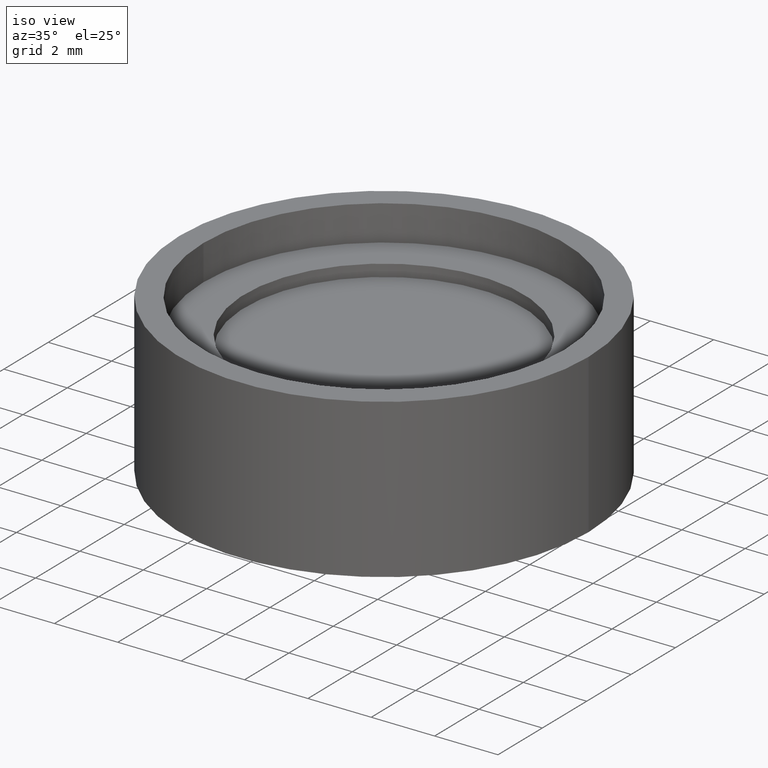
[diagram: clean part render]
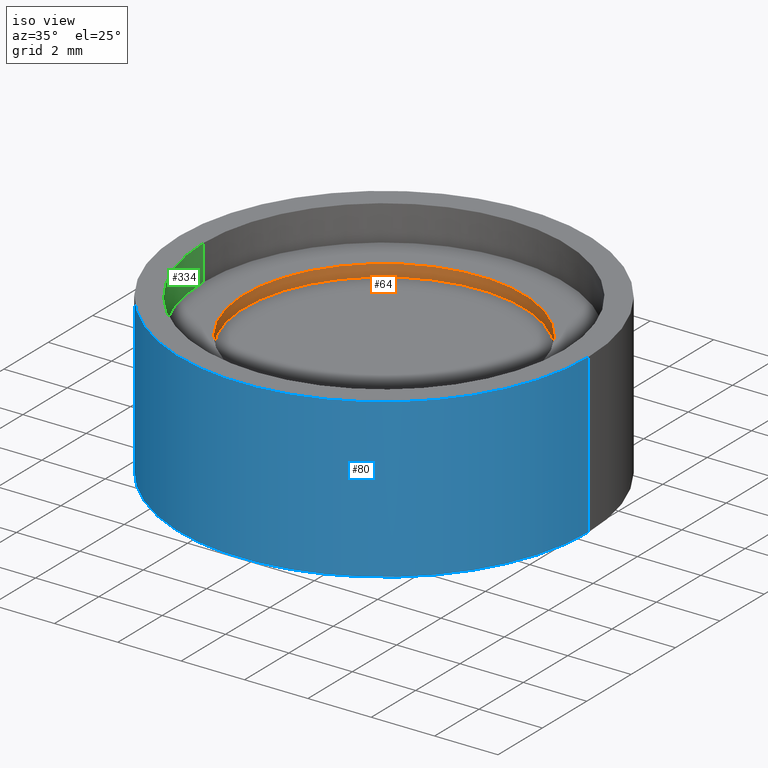
[diagram: same view with three faces highlighted in distinct colors, each labeled with its STEP entity id]
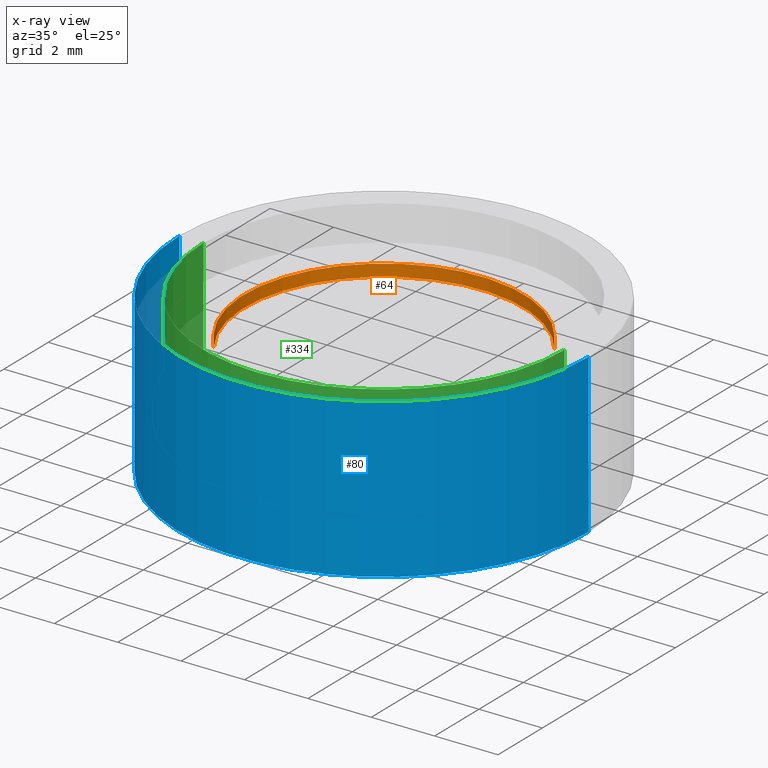
[diagram: x-ray of the same camera — body ghosted, the three highlighted faces saturated]
A machine part, iso view with three faces highlighted in distinct colors.
The next image is the same camera in x-ray (body ghosted, the three faces saturated) — at least one of them is partly hidden behind the body in this view.
Their STEP definitions:

[orange] entity #64 — the highlighted cylindrical surface (partial cylindrical patch) has radius 4.4069 mm, axis along (0, 0, 1).
#1 = VERTEX_POINT ( 'NONE', #535 ) ;
#52 = DIRECTION ( 'NONE',  ( 0.0000000000000000000, 0.0000000000000000000, 1.000000000000000000 ) ) ;
#64 = ADVANCED_FACE ( 'NONE', ( #527 ), #286, .F. ) ;
#66 = VECTOR ( 'NONE', #630, 1000.000000000000000 ) ;
#76 = DIRECTION ( 'NONE',  ( 0.8284142084669521289, 0.5601159694296110603, 0.0000000000000000000 ) ) ;
#77 = DIRECTION ( 'NONE',  ( 0.0000000000000000000, 0.0000000000000000000, 1.000000000000000000 ) ) ;
#135 = DIRECTION ( 'NONE',  ( 0.0000000000000000000, 0.0000000000000000000, 1.000000000000000000 ) ) ;
#151 = EDGE_CURVE ( 'NONE', #529, #181, #168, .T. ) ;
#152 = ORIENTED_EDGE ( 'NONE', *, *, #169, .T. ) ;
#168 = CIRCLE ( 'NONE', #288, 4.406899999999999373 ) ;
#169 = EDGE_CURVE ( 'NONE', #1, #529, #182, .T. ) ;
#175 = ORIENTED_EDGE ( 'NONE', *, *, #271, .F. ) ;
#181 = VERTEX_POINT ( 'NONE', #185 ) ;
#182 = LINE ( 'NONE', #577, #66 ) ;
#185 = CARTESIAN_POINT ( 'NONE',  ( -3.650738575293011490, -2.468375065679352165, 2.762000000000000011 ) ) ;
#219 = CARTESIAN_POINT ( 'NONE',  ( 0.0000000000000000000, 0.0000000000000000000, 2.381000000000000227 ) ) ;
#252 = VERTEX_POINT ( 'NONE', #338 ) ;
#271 = EDGE_CURVE ( 'NONE', #1, #252, #564, .T. ) ;
#283 = CARTESIAN_POINT ( 'NONE',  ( 0.0000000000000000000, 0.0000000000000000000, 2.381000000000000227 ) ) ;
#286 = CYLINDRICAL_SURFACE ( 'NONE', #348, 4.406899999999999373 ) ;
#288 = AXIS2_PLACEMENT_3D ( 'NONE', #431, #135, #76 ) ;
#292 = ORIENTED_EDGE ( 'NONE', *, *, #474, .F. ) ;
#336 = DIRECTION ( 'NONE',  ( 0.8284142084669521289, 0.5601159694296110603, 0.0000000000000000000 ) ) ;
#338 = CARTESIAN_POINT ( 'NONE',  ( -3.650738575293011490, -2.468375065679352165, 2.381000000000000227 ) ) ;
#348 = AXIS2_PLACEMENT_3D ( 'NONE', #283, #77, #336 ) ;
#391 = CARTESIAN_POINT ( 'NONE',  ( 3.650738575293011046, 2.468375065679352609, 2.762000000000000011 ) ) ;
#414 = DIRECTION ( 'NONE',  ( 0.8284142084669521289, 0.5601159694296110603, 0.0000000000000000000 ) ) ;
#426 = EDGE_LOOP ( 'NONE', ( #292, #175, #152, #453 ) ) ;
#431 = CARTESIAN_POINT ( 'NONE',  ( 0.0000000000000000000, 0.0000000000000000000, 2.762000000000000011 ) ) ;
#453 = ORIENTED_EDGE ( 'NONE', *, *, #151, .T. ) ;
#474 = EDGE_CURVE ( 'NONE', #252, #181, #504, .T. ) ;
#504 = LINE ( 'NONE', #510, #533 ) ;
#510 = CARTESIAN_POINT ( 'NONE',  ( -3.650738575293011490, -2.468375065679352165, 2.381000000000000227 ) ) ;
#518 = DIRECTION ( 'NONE',  ( 0.0000000000000000000, 0.0000000000000000000, 1.000000000000000000 ) ) ;
#527 = FACE_OUTER_BOUND ( 'NONE', #426, .T. ) ;
#529 = VERTEX_POINT ( 'NONE', #391 ) ;
#533 = VECTOR ( 'NONE', #518, 1000.000000000000000 ) ;
#535 = CARTESIAN_POINT ( 'NONE',  ( 3.650738575293011046, 2.468375065679352609, 2.381000000000000227 ) ) ;
#564 = CIRCLE ( 'NONE', #592, 4.406899999999999373 ) ;
#577 = CARTESIAN_POINT ( 'NONE',  ( 3.650738575293011046, 2.468375065679352609, 2.381000000000000227 ) ) ;
#592 = AXIS2_PLACEMENT_3D ( 'NONE', #219, #52, #414 ) ;
#630 = DIRECTION ( 'NONE',  ( 0.0000000000000000000, 0.0000000000000000000, 1.000000000000000000 ) ) ;

[blue] entity #80 — the highlighted cylindrical surface (partial cylindrical patch) has radius 6.458 mm, axis along (-0, -0, -1).
#19 = DIRECTION ( 'NONE',  ( -0.0000000000000000000, -0.0000000000000000000, -1.000000000000000000 ) ) ;
#35 = CYLINDRICAL_SURFACE ( 'NONE', #540, 6.458015859815825266 ) ;
#80 = ADVANCED_FACE ( 'NONE', ( #437 ), #35, .T. ) ;
#119 = EDGE_CURVE ( 'NONE', #293, #440, #479, .T. ) ;
#129 = ORIENTED_EDGE ( 'NONE', *, *, #179, .F. ) ;
#130 = DIRECTION ( 'NONE',  ( -1.000000000000000000, 0.0000000000000000000, 0.0000000000000000000 ) ) ;
#146 = ORIENTED_EDGE ( 'NONE', *, *, #196, .F. ) ;
#148 = EDGE_LOOP ( 'NONE', ( #129, #229, #333, #146 ) ) ;
#178 = DIRECTION ( 'NONE',  ( -0.0000000000000000000, -0.0000000000000000000, -1.000000000000000000 ) ) ;
#179 = EDGE_CURVE ( 'NONE', #293, #450, #422, .T. ) ;
#188 = CARTESIAN_POINT ( 'NONE',  ( -6.458015859815825266, 0.0000000000000000000, -1.695065087290339889 ) ) ;
#191 = DIRECTION ( 'NONE',  ( -1.000000000000000000, 0.0000000000000000000, 0.0000000000000000000 ) ) ;
#196 = EDGE_CURVE ( 'NONE', #450, #322, #571, .T. ) ;
#212 = EDGE_CURVE ( 'NONE', #440, #322, #640, .T. ) ;
#229 = ORIENTED_EDGE ( 'NONE', *, *, #119, .T. ) ;
#235 = CARTESIAN_POINT ( 'NONE',  ( 0.0000000000000000000, 0.0000000000000000000, 3.881000000000001560 ) ) ;
#239 = DIRECTION ( 'NONE',  ( -1.000000000000000000, 0.0000000000000000000, 0.0000000000000000000 ) ) ;
#242 = CARTESIAN_POINT ( 'NONE',  ( 0.0000000000000000000, 0.0000000000000000000, -1.695065087290339889 ) ) ;
#256 = CARTESIAN_POINT ( 'NONE',  ( 6.458015859815827042, 7.908788451566294723E-16, -1.118999999999997996 ) ) ;
#293 = VERTEX_POINT ( 'NONE', #465 ) ;
#322 = VERTEX_POINT ( 'NONE', #364 ) ;
#332 = CARTESIAN_POINT ( 'NONE',  ( 0.0000000000000000000, 0.0000000000000000000, -1.118999999999997996 ) ) ;
#333 = ORIENTED_EDGE ( 'NONE', *, *, #212, .T. ) ;
#364 = CARTESIAN_POINT ( 'NONE',  ( -6.458015859815826154, 0.0000000000000000000, -1.118999999999997996 ) ) ;
#383 = DIRECTION ( 'NONE',  ( -0.0000000000000000000, -0.0000000000000000000, -1.000000000000000000 ) ) ;
#422 = LINE ( 'NONE', #638, #522 ) ;
#424 = AXIS2_PLACEMENT_3D ( 'NONE', #332, #534, #239 ) ;
#437 = FACE_OUTER_BOUND ( 'NONE', #148, .T. ) ;
#440 = VERTEX_POINT ( 'NONE', #499 ) ;
#450 = VERTEX_POINT ( 'NONE', #256 ) ;
#454 = AXIS2_PLACEMENT_3D ( 'NONE', #235, #178, #130 ) ;
#465 = CARTESIAN_POINT ( 'NONE',  ( 6.458015859815825266, 7.908788451566292751E-16, 3.881000000000001560 ) ) ;
#467 = VECTOR ( 'NONE', #383, 1000.000000000000000 ) ;
#479 = CIRCLE ( 'NONE', #454, 6.458015859815825266 ) ;
#499 = CARTESIAN_POINT ( 'NONE',  ( -6.458015859815825266, 0.0000000000000000000, 3.881000000000001560 ) ) ;
#522 = VECTOR ( 'NONE', #19, 1000.000000000000000 ) ;
#534 = DIRECTION ( 'NONE',  ( -0.0000000000000000000, -0.0000000000000000000, -1.000000000000000000 ) ) ;
#540 = AXIS2_PLACEMENT_3D ( 'NONE', #242, #643, #191 ) ;
#571 = CIRCLE ( 'NONE', #424, 6.458015859815826154 ) ;
#638 = CARTESIAN_POINT ( 'NONE',  ( 6.458015859815825266, 7.908788451566292751E-16, -1.695065087290339889 ) ) ;
#640 = LINE ( 'NONE', #188, #467 ) ;
#643 = DIRECTION ( 'NONE',  ( -0.0000000000000000000, -0.0000000000000000000, -1.000000000000000000 ) ) ;

[green] entity #334 — the highlighted cylindrical surface (partial cylindrical patch) has radius 5.7 mm, axis along (-0, -0, -1).
#30 = DIRECTION ( 'NONE',  ( -1.000000000000000000, 0.0000000000000000000, 0.0000000000000000000 ) ) ;
#37 = ORIENTED_EDGE ( 'NONE', *, *, #173, .F. ) ;
#38 = VERTEX_POINT ( 'NONE', #490 ) ;
#41 = AXIS2_PLACEMENT_3D ( 'NONE', #142, #186, #539 ) ;
#42 = VECTOR ( 'NONE', #215, 1000.000000000000000 ) ;
#46 = LINE ( 'NONE', #165, #444 ) ;
#57 = CYLINDRICAL_SURFACE ( 'NONE', #365, 5.700000000000000178 ) ;
#92 = EDGE_CURVE ( 'NONE', #38, #371, #627, .T. ) ;
#120 = CARTESIAN_POINT ( 'NONE',  ( -5.700000000000000178, 0.0000000000000000000, 0.8809999999999997833 ) ) ;
#142 = CARTESIAN_POINT ( 'NONE',  ( 0.0000000000000000000, 0.0000000000000000000, 0.8809999999999997833 ) ) ;
#165 = CARTESIAN_POINT ( 'NONE',  ( -5.700000000000000178, 0.0000000000000000000, -1.695065087290339889 ) ) ;
#173 = EDGE_CURVE ( 'NONE', #387, #345, #498, .T. ) ;
#186 = DIRECTION ( 'NONE',  ( -0.0000000000000000000, -0.0000000000000000000, -1.000000000000000000 ) ) ;
#215 = DIRECTION ( 'NONE',  ( -0.0000000000000000000, -0.0000000000000000000, -1.000000000000000000 ) ) ;
#221 = AXIS2_PLACEMENT_3D ( 'NONE', #486, #584, #30 ) ;
#253 = CARTESIAN_POINT ( 'NONE',  ( 0.0000000000000000000, 0.0000000000000000000, -1.695065087290339889 ) ) ;
#263 = LINE ( 'NONE', #461, #42 ) ;
#265 = DIRECTION ( 'NONE',  ( -0.0000000000000000000, -0.0000000000000000000, -1.000000000000000000 ) ) ;
#306 = EDGE_LOOP ( 'NONE', ( #37, #358, #597, #434 ) ) ;
#334 = ADVANCED_FACE ( 'NONE', ( #516 ), #57, .F. ) ;
#345 = VERTEX_POINT ( 'NONE', #368 ) ;
#358 = ORIENTED_EDGE ( 'NONE', *, *, #488, .T. ) ;
#365 = AXIS2_PLACEMENT_3D ( 'NONE', #253, #265, #511 ) ;
#368 = CARTESIAN_POINT ( 'NONE',  ( -5.699999999999999289, 0.0000000000000000000, 3.881000000000001560 ) ) ;
#371 = VERTEX_POINT ( 'NONE', #120 ) ;
#387 = VERTEX_POINT ( 'NONE', #451 ) ;
#406 = EDGE_CURVE ( 'NONE', #345, #371, #46, .T. ) ;
#434 = ORIENTED_EDGE ( 'NONE', *, *, #406, .F. ) ;
#444 = VECTOR ( 'NONE', #464, 1000.000000000000000 ) ;
#451 = CARTESIAN_POINT ( 'NONE',  ( 5.699999999999999289, 6.980486755139912122E-16, 3.881000000000001560 ) ) ;
#461 = CARTESIAN_POINT ( 'NONE',  ( 5.700000000000000178, 6.980486755139913108E-16, -1.695065087290339889 ) ) ;
#464 = DIRECTION ( 'NONE',  ( -0.0000000000000000000, -0.0000000000000000000, -1.000000000000000000 ) ) ;
#486 = CARTESIAN_POINT ( 'NONE',  ( 0.0000000000000000000, 0.0000000000000000000, 3.881000000000001560 ) ) ;
#488 = EDGE_CURVE ( 'NONE', #387, #38, #263, .T. ) ;
#490 = CARTESIAN_POINT ( 'NONE',  ( 5.700000000000000178, 6.980486755139913108E-16, 0.8809999999999997833 ) ) ;
#498 = CIRCLE ( 'NONE', #221, 5.699999999999999289 ) ;
#511 = DIRECTION ( 'NONE',  ( -1.000000000000000000, 0.0000000000000000000, 0.0000000000000000000 ) ) ;
#516 = FACE_OUTER_BOUND ( 'NONE', #306, .T. ) ;
#539 = DIRECTION ( 'NONE',  ( -1.000000000000000000, 0.0000000000000000000, 0.0000000000000000000 ) ) ;
#584 = DIRECTION ( 'NONE',  ( -0.0000000000000000000, -0.0000000000000000000, -1.000000000000000000 ) ) ;
#597 = ORIENTED_EDGE ( 'NONE', *, *, #92, .T. ) ;
#627 = CIRCLE ( 'NONE', #41, 5.700000000000000178 ) ;